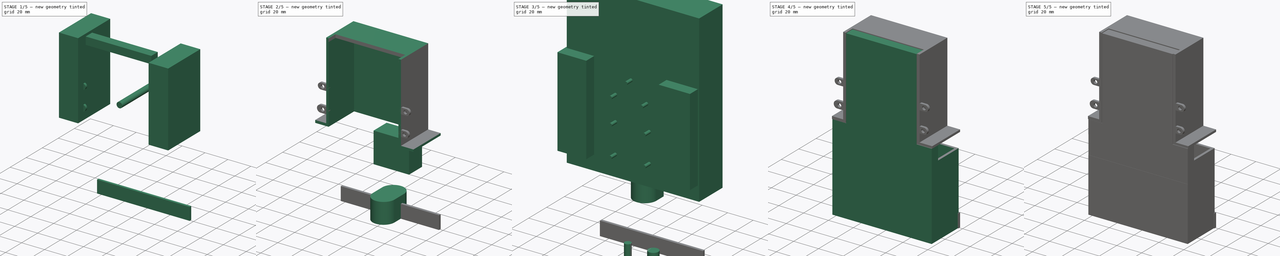
[diagram: build sequence overview — one tinted view per stage of 5, left to right]
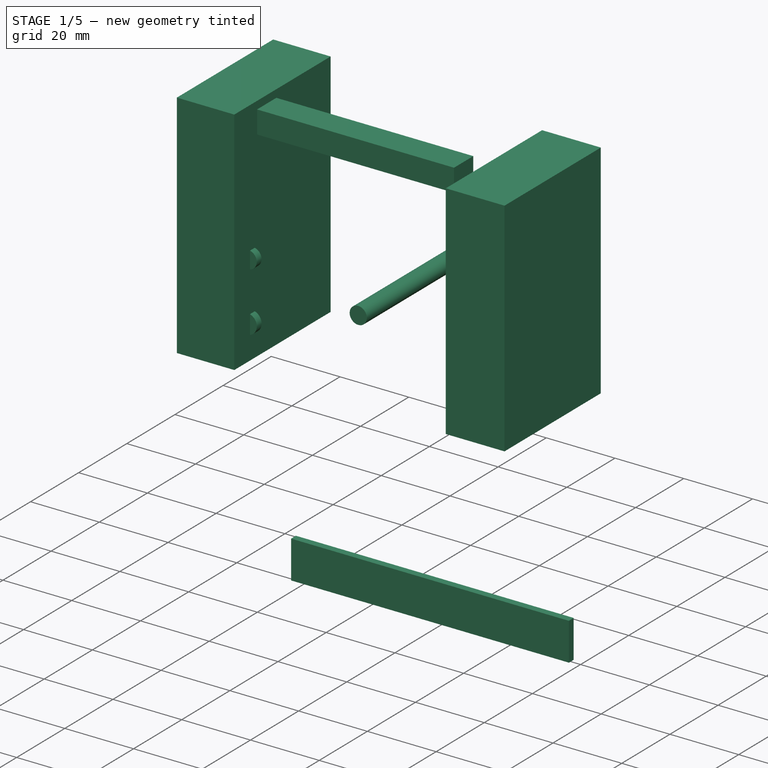
[diagram: stage 1 of 5 — iso view after this stage's code; geometry added in this stage tinted green]
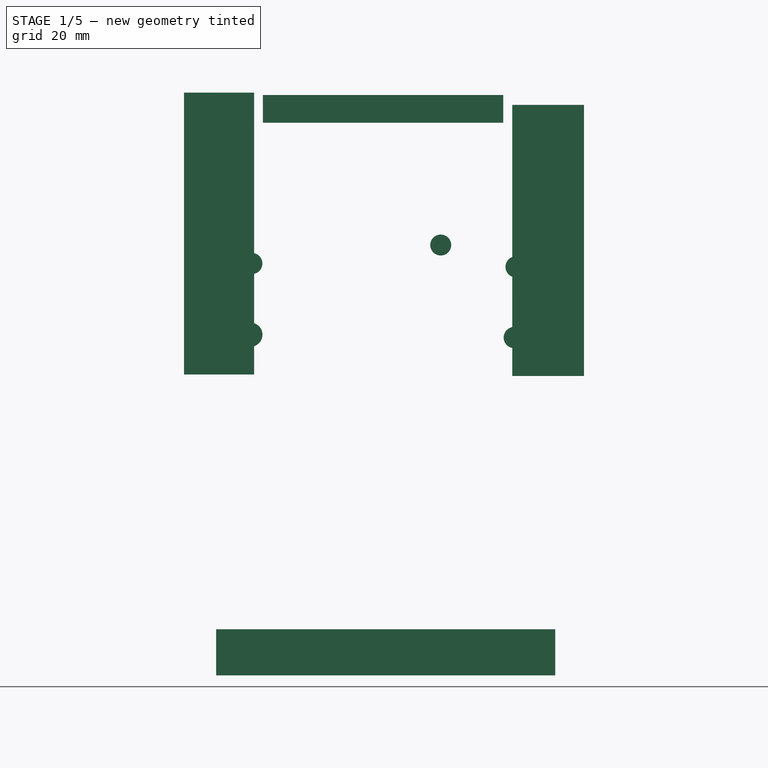
[diagram: stage 1 of 5 — front view after this stage's code; geometry added in this stage tinted green]
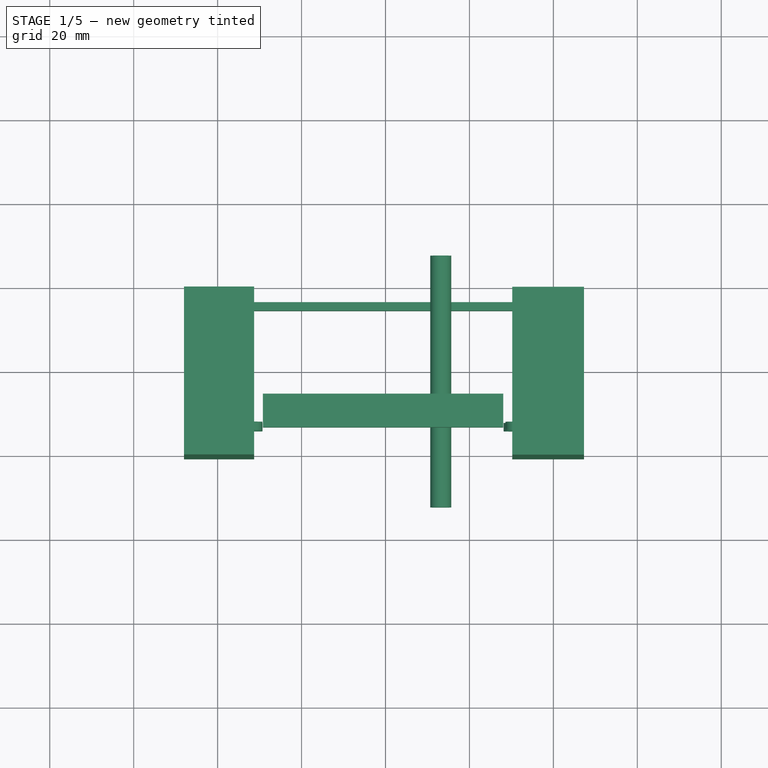
[diagram: stage 1 of 5 — top view after this stage's code; geometry added in this stage tinted green]
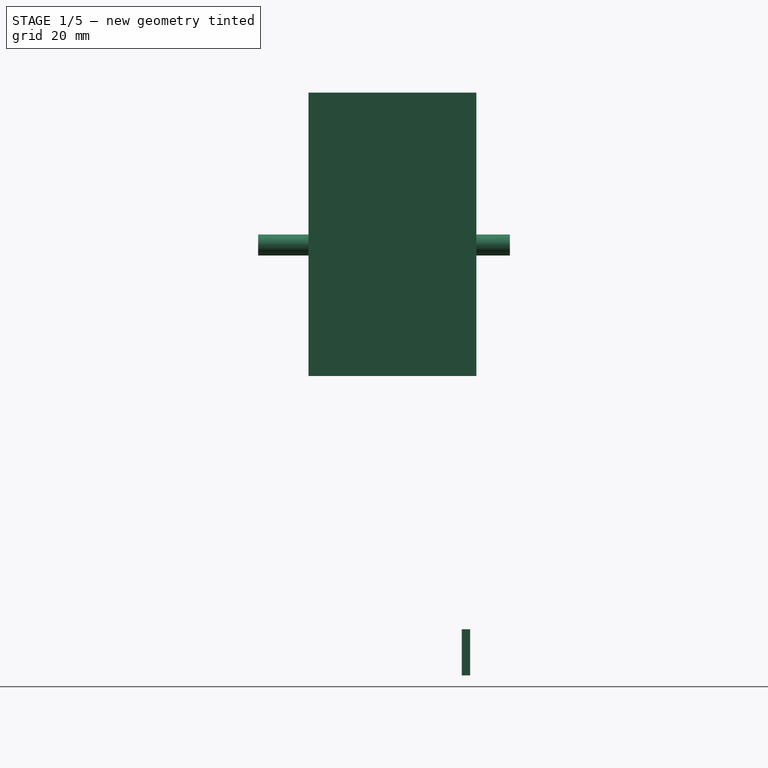
[diagram: stage 1 of 5 — right view after this stage's code; geometry added in this stage tinted green]
FCSTD DOCUMENT  (FreeCAD 0.18.4R)
Label: 2_box_swLight
License: All rights reserved
LicenseURL: http://en.wikipedia.org/wiki/All_rights_reserved
objects: Sketcher::SketchObject×21, Part::Extrusion×20, Part::Cut×14, Part::MultiFuse×2, PartDesign::Pad×1, PartDesign::Body×1
note: 60 computed .brp shape members not serialized (recipe doc carries the construction recipe); baked Part::Feature solids carry a one-line shape summary decoded from their .brp

FEATURE [Part::Extrusion] Extrude015  label="Extrude016"
  Base = -> Sketch016
  Dir = (0,-1,0)
  DirMode = 2
  FaceMakerClass = Part::FaceMakerBullseye
  LengthFwd = 40
  LengthRev = 0
  Placement = pos=(0,18,0) rot=(0,0,1;0rad)
  Solid = true
  Symmetric = false
FEATURE [Sketcher::SketchObject] Sketch017  label="Sketch018"
  Placement = pos=(-1,0,33) rot=(-1,0,0;4.71239rad)
  sketch-geometry (1):
    g0: Circle CenterX=14.1524 CenterY=69.5358 CenterZ=0 NormalX=0 NormalY=0 NormalZ=1 AngleXU=0 Radius=2.5
  constraints (1):
    c: Radius(g0) = 2.5
FEATURE [Part::Extrusion] Extrude016  label="Extrude017"
  Base = -> Sketch017
  Dir = (0,-1,-2e-16)
  DirMode = 2
  FaceMakerClass = Part::FaceMakerBullseye
  LengthFwd = 60
  LengthRev = 0
  Placement = pos=(0,26,0) rot=(0,0,1;0rad)
  Solid = true
  Symmetric = false
FEATURE [Sketcher::SketchObject] Sketch018  label="Sketch019"
  Placement = pos=(0,0.01,0) rot=(-1,0,0;4.71239rad)
  sketch-geometry (4):
    g0: LineSegment StartX=-29.2366 StartY=137.275 StartZ=0 EndX=28.0518 EndY=137.275 EndZ=0
    g1: LineSegment StartX=28.0518 StartY=137.275 StartZ=0 EndX=28.0518 EndY=130.688 EndZ=0
    g2: LineSegment StartX=28.0518 StartY=130.688 StartZ=0 EndX=-29.2366 EndY=130.688 EndZ=0
    g3: LineSegment StartX=-29.2366 StartY=130.688 StartZ=0 EndX=-29.2366 EndY=137.275 EndZ=0
  constraints (8):
    c: Coincident(g0,g1)
    c: Coincident(g1,g2)
    c: Coincident(g2,g3)
    c: Coincident(g3,g0)
    c: Horizontal(g0)
    c: Horizontal(g2)
    c: Vertical(g1)
    c: Vertical(g3)
FEATURE [Part::Extrusion] Extrude017  label="Extrude018"
  Base = -> Sketch018
  Dir = (0,-1,0)
  DirMode = 2
  FaceMakerClass = Part::FaceMakerBullseye
  LengthFwd = 8
  LengthRev = 0
  Placement = pos=(0,-7.5,1) rot=(0,0,1;0rad)
  Solid = true
  Symmetric = false
FEATURE [Sketcher::SketchObject] Sketch019  label="Sketch020"
  Placement = pos=(0,0.01,0) rot=(-1,0,0;4.71239rad)
  sketch-geometry (16):
    g0: ArcOfCircle CenterX=30.6738 CenterY=80.4963 CenterZ=0 NormalX=0 NormalY=0 NormalZ=1 AngleXU=0 Radius=2.52821 StartAngle=1.5708 EndAngle=4.71239
    g1: ArcOfCircle CenterX=33.7537 CenterY=80.4963 CenterZ=0 NormalX=0 NormalY=0 NormalZ=1 AngleXU=0 Radius=2.52821 StartAngle=4.71239 EndAngle=7.85398
    g2: LineSegment StartX=30.6738 StartY=77.9681 StartZ=0 EndX=33.7537 EndY=77.9681 EndZ=0
    g3: LineSegment StartX=30.6738 StartY=83.0245 StartZ=0 EndX=33.7537 EndY=83.0245 EndZ=0
    g4: ArcOfCircle CenterX=31.0881 CenterY=97.3311 CenterZ=0 NormalX=0 NormalY=0 NormalZ=1 AngleXU=0 Radius=2.51255 StartAngle=1.5708 EndAngle=4.71239
    g5: ArcOfCircle CenterX=34.6754 CenterY=97.3311 CenterZ=0 NormalX=0 NormalY=0 NormalZ=1 AngleXU=0 Radius=2.51255 StartAngle=4.71239 EndAngle=7.85398
    g6: LineSegment StartX=31.0881 StartY=94.8186 StartZ=0 EndX=34.6754 EndY=94.8186 EndZ=0
    g7: LineSegment StartX=31.0881 StartY=99.8437 StartZ=0 EndX=34.6754 EndY=99.8437 EndZ=0
    g8: ArcOfCircle CenterX=-35.6455 CenterY=98.1309 CenterZ=0 NormalX=0 NormalY=0 NormalZ=1 AngleXU=0 Radius=2.52673 StartAngle=1.5708 EndAngle=4.71239
    g9: ArcOfCircle CenterX=-31.8608 CenterY=98.1309 CenterZ=0 NormalX=0 NormalY=0 NormalZ=1 AngleXU=0 Radius=2.52673 StartAngle=4.71239 EndAngle=7.85398
    g10: LineSegment StartX=-35.6455 StartY=95.6042 StartZ=0 EndX=-31.8608 EndY=95.6042 EndZ=0
    g11: LineSegment StartX=-35.6455 StartY=100.658 StartZ=0 EndX=-31.8608 EndY=100.658 EndZ=0
    g12: ArcOfCircle CenterX=-36.0324 CenterY=81.1781 CenterZ=0 NormalX=0 NormalY=0 NormalZ=1 AngleXU=0 Radius=2.86834 StartAngle=1.5708 EndAngle=4.71239
    g13: ArcOfCircle CenterX=-32.1846 CenterY=81.1781 CenterZ=0 NormalX=0 NormalY=0 NormalZ=1 AngleXU=0 Radius=2.86834 StartAngle=4.71239 EndAngle=7.85398
    g14: LineSegment StartX=-36.0324 StartY=78.3098 StartZ=0 EndX=-32.1846 EndY=78.3098 EndZ=0
    g15: LineSegment StartX=-36.0324 StartY=84.0465 StartZ=0 EndX=-32.1846 EndY=84.0465 EndZ=0
  constraints (24):
    c: Tangent(g0,g3) = 1.5708
    c: Tangent(g0,g2) = -1.5708
    c: Tangent(g2,g1) = -1.5708
    c: Tangent(g3,g1) = 1.5708
    c: Horizontal(g2)
    c: Equal(g0,g1)
    c: Tangent(g4,g7) = 1.5708
    c: Tangent(g4,g6) = -1.5708
    c: Tangent(g6,g5) = -1.5708
    c: Tangent(g7,g5) = 1.5708
    c: Horizontal(g6)
    c: Equal(g4,g5)
    c: Tangent(g8,g11) = 1.5708
    c: Tangent(g8,g10) = -1.5708
    c: Tangent(g10,g9) = -1.5708
    c: Tangent(g11,g9) = 1.5708
    c: Horizontal(g10)
    c: Equal(g8,g9)
    c: Tangent(g12,g15) = 1.5708
    c: Tangent(g12,g14) = -1.5708
    c: Tangent(g14,g13) = -1.5708
    c: Tangent(g15,g13) = 1.5708
    c: Horizontal(g14)
    c: Equal(g12,g13)
FEATURE [Sketcher::SketchObject] Sketch020  label="Sketch021"
  Placement = pos=(0,-13,0) rot=(-1,0,0;4.71239rad)
  sketch-geometry (4):
    g0: Circle CenterX=-34.3565 CenterY=98.1119 CenterZ=0 NormalX=0 NormalY=0 NormalZ=1 AngleXU=0 Radius=1.5
    g1: Circle CenterX=33.7677 CenterY=97.2278 CenterZ=0 NormalX=0 NormalY=0 NormalZ=1 AngleXU=0 Radius=1.5
    g2: Circle CenterX=-34.3622 CenterY=81.0082 CenterZ=0 NormalX=0 NormalY=0 NormalZ=1 AngleXU=0 Radius=1.5
    g3: Circle CenterX=32.9978 CenterY=80.4267 CenterZ=0 NormalX=0 NormalY=0 NormalZ=1 AngleXU=0 Radius=1.5
  constraints (3):
    c: Radius(g0) = 1.5
    c: Equal(g0,g1) = 1.5
    c: Equal(g0,g2) = 1.5
FEATURE [Part::Extrusion] Extrude018  label="Extrude019"
  Base = -> Sketch019
  Dir = (0,-1,0)
  DirMode = 2
  FaceMakerClass = Part::FaceMakerBullseye
  LengthFwd = 2
  LengthRev = 0
  Placement = pos=(0,-13.5,0) rot=(0,0,1;0rad)
  Solid = true
  Symmetric = false
FEATURE [Part::Extrusion] Extrude019  label="Extrude020"
  Base = -> Sketch020
  Dir = (0,-1,-2e-16)
  DirMode = 2
  FaceMakerClass = Part::FaceMakerBullseye
  LengthFwd = 10
  LengthRev = 0
  Solid = true
  Symmetric = false
FEATURE [Part::Cut] Cut013
  Base = -> Extrude018
  Tool = -> Extrude019
FEATURE [Sketcher::SketchObject] Sketch021  label="Sketch022"
  MapMode = 5
  Support = -> [XY_Plane001]
  sketch-geometry (4):
    g0: LineSegment StartX=-40.3661 StartY=14.5349 StartZ=0 EndX=40.4396 EndY=14.5349 EndZ=0
    g1: LineSegment StartX=40.4396 StartY=14.5349 StartZ=0 EndX=40.4396 EndY=16.5199 EndZ=0
    g2: LineSegment StartX=40.4396 StartY=16.5199 StartZ=0 EndX=-40.3661 EndY=16.5199 EndZ=0
    g3: LineSegment StartX=-40.3661 StartY=16.5199 StartZ=0 EndX=-40.3661 EndY=14.5349 EndZ=0
  constraints (8):
    c: Coincident(g0,g1)
    c: Coincident(g1,g2)
    c: Coincident(g2,g3)
    c: Coincident(g3,g0)
    c: Horizontal(g0)
    c: Horizontal(g2)
    c: Vertical(g1)
    c: Vertical(g3)
FEATURE [PartDesign::Pad] Pad
  Length = 11
  Length2 = 100
  Profile = -> Sketch021
  Type = 0
FEATURE [PartDesign::Body] Body001
  Group = -> [Sketch021,Pad]
  Origin = -> Origin001
  Placement = pos=(0,0,58.7) rot=(0,0,1;0rad)
  Tip = -> Pad
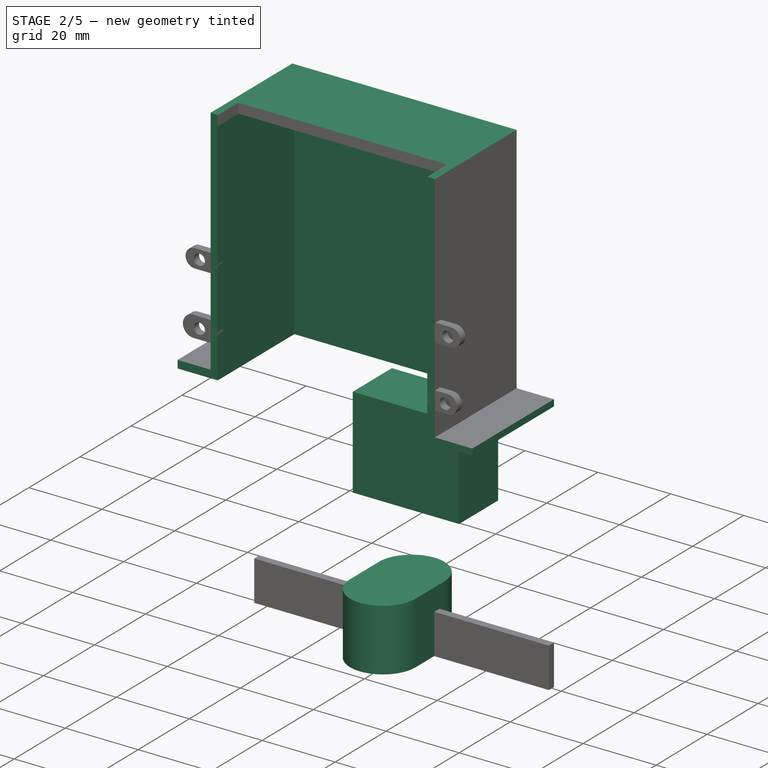
[diagram: stage 2 of 5 — iso view after this stage's code; geometry added in this stage tinted green]
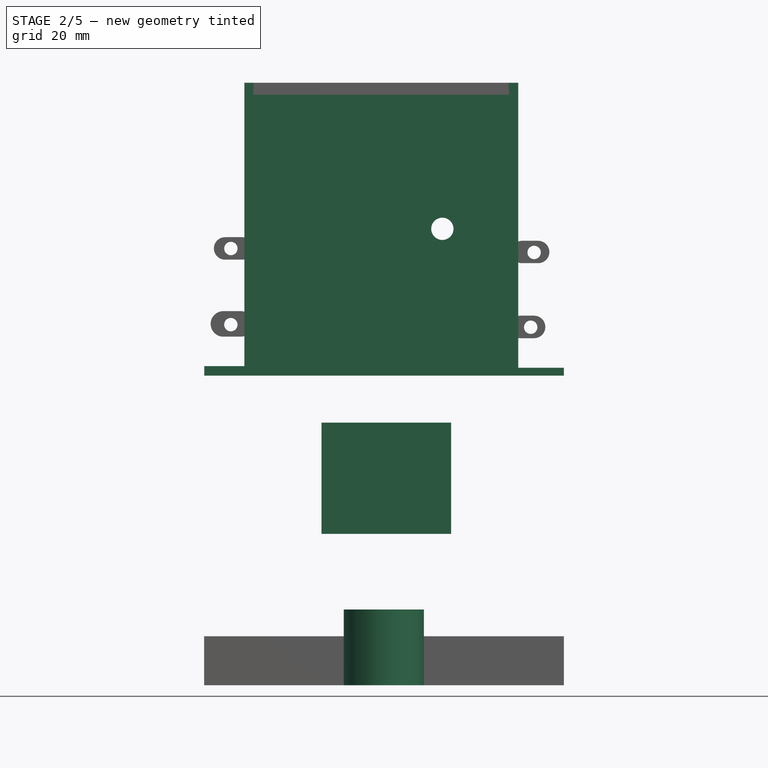
[diagram: stage 2 of 5 — front view after this stage's code; geometry added in this stage tinted green]
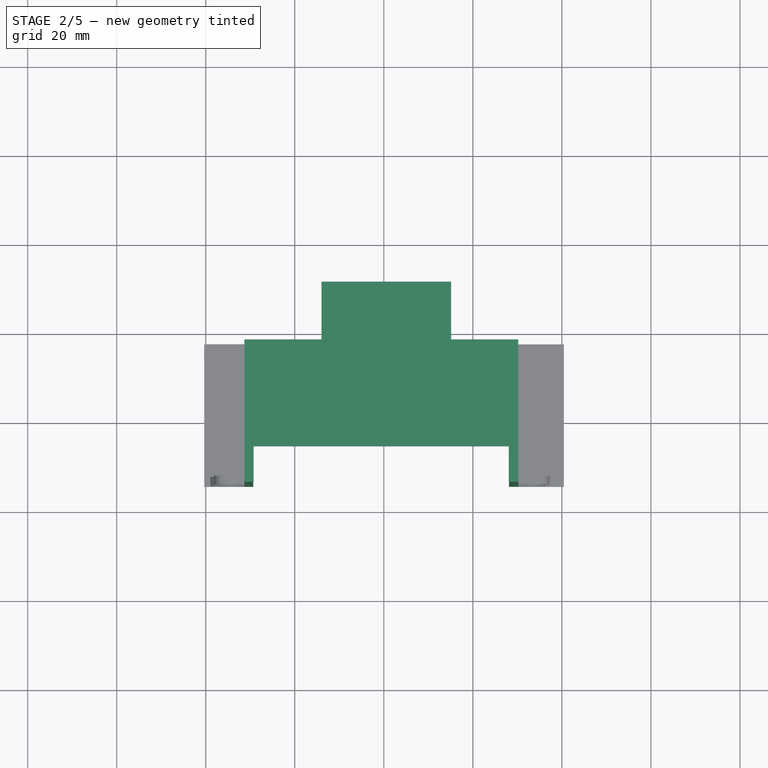
[diagram: stage 2 of 5 — top view after this stage's code; geometry added in this stage tinted green]
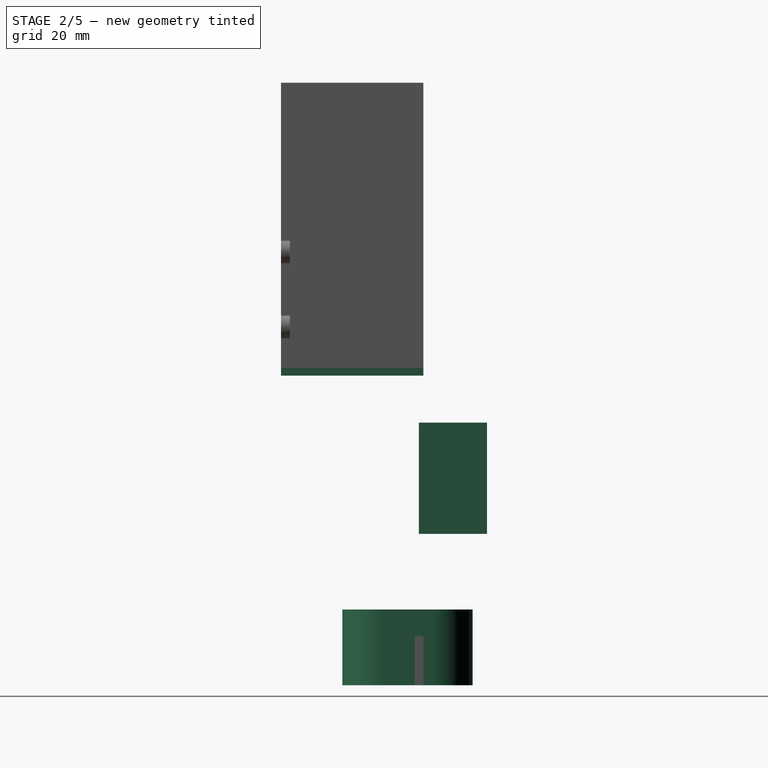
[diagram: stage 2 of 5 — right view after this stage's code; geometry added in this stage tinted green]
FEATURE [Part::Extrusion] Extrude011  label="Extrude012"
  Base = -> Sketch012
  Dir = (0,0,1)
  DirMode = 2
  FaceMakerClass = Part::FaceMakerBullseye
  LengthFwd = 17
  LengthRev = 0
  Solid = true
  Symmetric = false
FEATURE [Sketcher::SketchObject] Sketch013  label="Sketch014"
  Placement = pos=(0,0,0.01) rot=(0,0,1;0rad)
  sketch-geometry (4):
    g0: LineSegment StartX=-14.0068 StartY=30.8063 StartZ=0 EndX=15.1256 EndY=30.8063 EndZ=0
    g1: LineSegment StartX=15.1256 StartY=30.8063 StartZ=0 EndX=15.1256 EndY=15.5061 EndZ=0
    g2: LineSegment StartX=15.1256 StartY=15.5061 StartZ=0 EndX=-14.0068 EndY=15.5061 EndZ=0
    g3: LineSegment StartX=-14.0068 StartY=15.5061 StartZ=0 EndX=-14.0068 EndY=30.8063 EndZ=0
  constraints (8):
    c: Coincident(g0,g1)
    c: Coincident(g1,g2)
    c: Coincident(g2,g3)
    c: Coincident(g3,g0)
    c: Horizontal(g0)
    c: Horizontal(g2)
    c: Vertical(g1)
    c: Vertical(g3)
FEATURE [Part::Extrusion] Extrude012  label="Extrude013"
  Base = -> Sketch013
  Dir = (0,0,1)
  DirMode = 2
  FaceMakerClass = Part::FaceMakerBullseye
  LengthFwd = 25
  LengthRev = 0
  Placement = pos=(0,0,34) rot=(0,0,1;0rad)
  Solid = true
  Symmetric = false
FEATURE [Sketcher::SketchObject] Sketch014  label="Sketch015"
  Placement = pos=(0,0.01,0) rot=(-1,0,0;4.71239rad)
  sketch-geometry (4):
    g0: LineSegment StartX=-40.3438 StartY=135.355 StartZ=0 EndX=40.4503 EndY=135.355 EndZ=0
    g1: LineSegment StartX=40.4503 StartY=135.355 StartZ=0 EndX=40.4503 EndY=69.5602 EndZ=0
    g2: LineSegment StartX=40.4503 StartY=69.5602 StartZ=0 EndX=-40.3438 EndY=69.5602 EndZ=0
    g3: LineSegment StartX=-40.3438 StartY=69.5602 StartZ=0 EndX=-40.3438 EndY=135.355 EndZ=0
  constraints (8):
    c: Coincident(g0,g1)
    c: Coincident(g1,g2)
    c: Coincident(g2,g3)
    c: Coincident(g3,g0)
    c: Horizontal(g0)
    c: Horizontal(g2)
    c: Vertical(g1)
    c: Vertical(g3)
FEATURE [Sketcher::SketchObject] Sketch015  label="Sketch016"
  Placement = pos=(0,0.01,0) rot=(-1,0,0;4.71239rad)
  sketch-geometry (4):
    g0: LineSegment StartX=-29.3396 StartY=132.645 StartZ=0 EndX=28.1152 EndY=132.645 EndZ=0
    g1: LineSegment StartX=28.1152 StartY=132.645 StartZ=0 EndX=28.1152 EndY=68.9556 EndZ=0
    g2: LineSegment StartX=28.1152 StartY=68.9556 StartZ=0 EndX=-29.3396 EndY=68.9556 EndZ=0
    g3: LineSegment StartX=-29.3396 StartY=68.9556 StartZ=0 EndX=-29.3396 EndY=132.645 EndZ=0
  constraints (8):
    c: Coincident(g0,g1)
    c: Coincident(g1,g2)
    c: Coincident(g2,g3)
    c: Coincident(g3,g0)
    c: Horizontal(g0)
    c: Horizontal(g2)
    c: Vertical(g1)
    c: Vertical(g3)
FEATURE [Sketcher::SketchObject] Sketch016  label="Sketch017"
  Placement = pos=(0,0.01,0) rot=(-1,0,0;4.71239rad)
  sketch-geometry (8):
    g0: LineSegment StartX=30.2092 StartY=135.924 StartZ=0 EndX=47.2882 EndY=135.924 EndZ=0
    g1: LineSegment StartX=47.2882 StartY=135.924 StartZ=0 EndX=47.2882 EndY=71.3262 EndZ=0
    g2: LineSegment StartX=47.2882 StartY=71.3262 StartZ=0 EndX=30.2092 EndY=71.3262 EndZ=0
    g3: LineSegment StartX=30.2092 StartY=71.3262 StartZ=0 EndX=30.2092 EndY=135.924 EndZ=0
    g4: LineSegment StartX=-48.0143 StartY=138.85 StartZ=0 EndX=-31.31 EndY=138.85 EndZ=0
    g5: LineSegment StartX=-31.31 StartY=138.85 StartZ=0 EndX=-31.31 EndY=71.6925 EndZ=0
    g6: LineSegment StartX=-31.31 StartY=71.6925 StartZ=0 EndX=-48.0143 EndY=71.6925 EndZ=0
    g7: LineSegment StartX=-48.0143 StartY=71.6925 StartZ=0 EndX=-48.0143 EndY=138.85 EndZ=0
  constraints (16):
    c: Coincident(g0,g1)
    c: Coincident(g1,g2)
    c: Coincident(g2,g3)
    c: Coincident(g3,g0)
    c: Horizontal(g0)
    c: Horizontal(g2)
    c: Vertical(g1)
    c: Vertical(g3)
    c: Coincident(g4,g5)
    c: Coincident(g5,g6)
    c: Coincident(g6,g7)
    c: Coincident(g7,g4)
    c: Horizontal(g4)
    c: Horizontal(g6)
    c: Vertical(g5)
    c: Vertical(g7)
FEATURE [Part::Extrusion] Extrude013  label="Extrude014"
  Base = -> Sketch014
  Dir = (0,-1,0)
  DirMode = 2
  FaceMakerClass = Part::FaceMakerBullseye
  LengthFwd = 32
  LengthRev = 0
  Placement = pos=(0,16.5,0) rot=(0,0,1;0rad)
  Solid = true
  Symmetric = false
FEATURE [Part::Extrusion] Extrude014  label="Extrude015"
  Base = -> Sketch015
  Dir = (0,-1,0)
  DirMode = 2
  FaceMakerClass = Part::FaceMakerBullseye
  LengthFwd = 30
  LengthRev = 0
  Placement = pos=(0,14.5,0) rot=(0,0,1;0rad)
  Solid = true
  Symmetric = false
FEATURE [Part::Cut] Cut009
  Base = -> Extrude013
  Tool = -> Extrude014
FEATURE [Part::Cut] Cut010
  Base = -> Cut009
  Tool = -> Extrude015
FEATURE [Part::Cut] Cut011
  Base = -> Cut010
  Tool = -> Extrude016
FEATURE [Part::Cut] Cut012
  Base = -> Cut011
  Tool = -> Extrude017
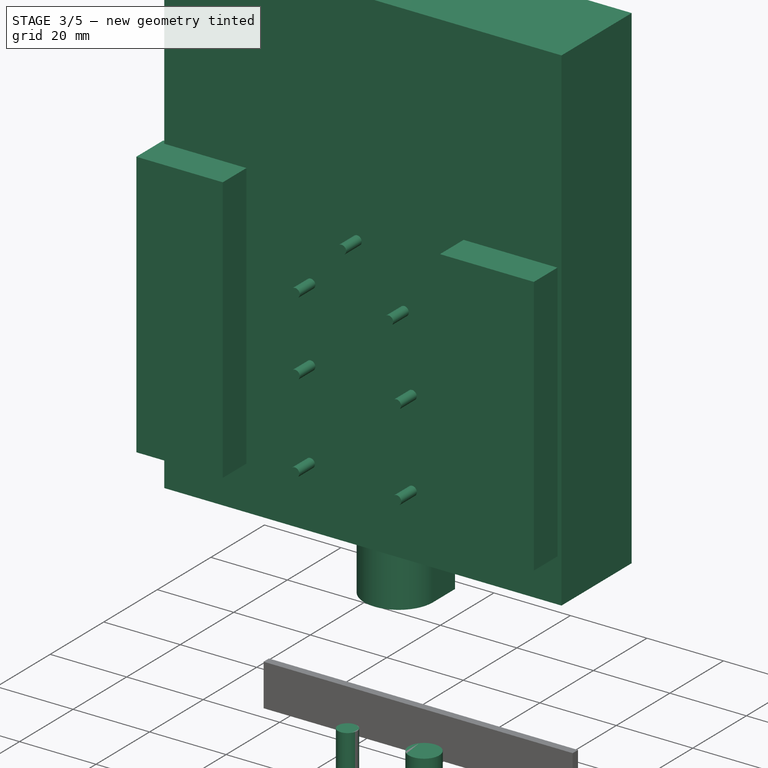
[diagram: stage 3 of 5 — iso view after this stage's code; geometry added in this stage tinted green]
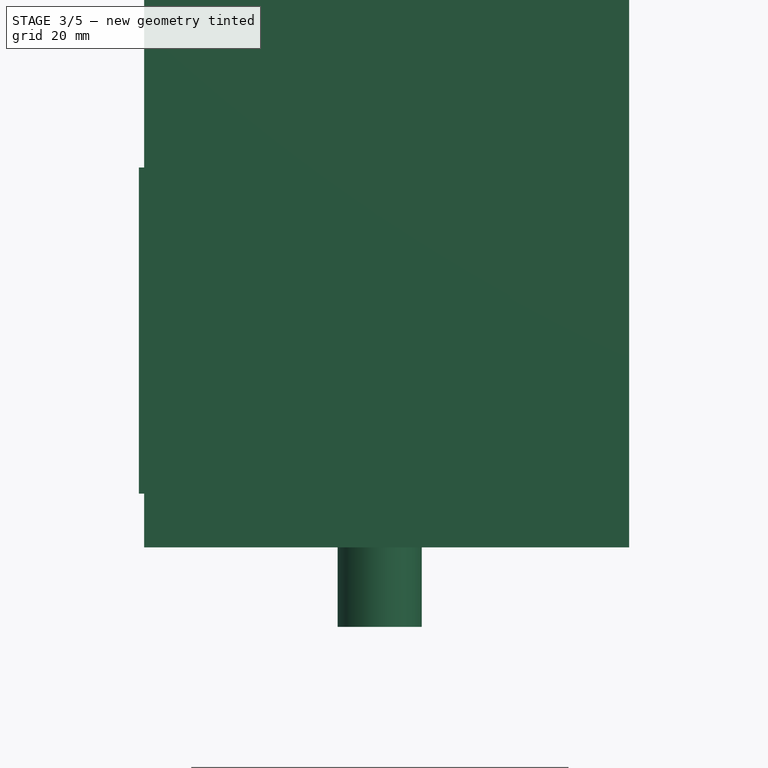
[diagram: stage 3 of 5 — front view after this stage's code; geometry added in this stage tinted green]
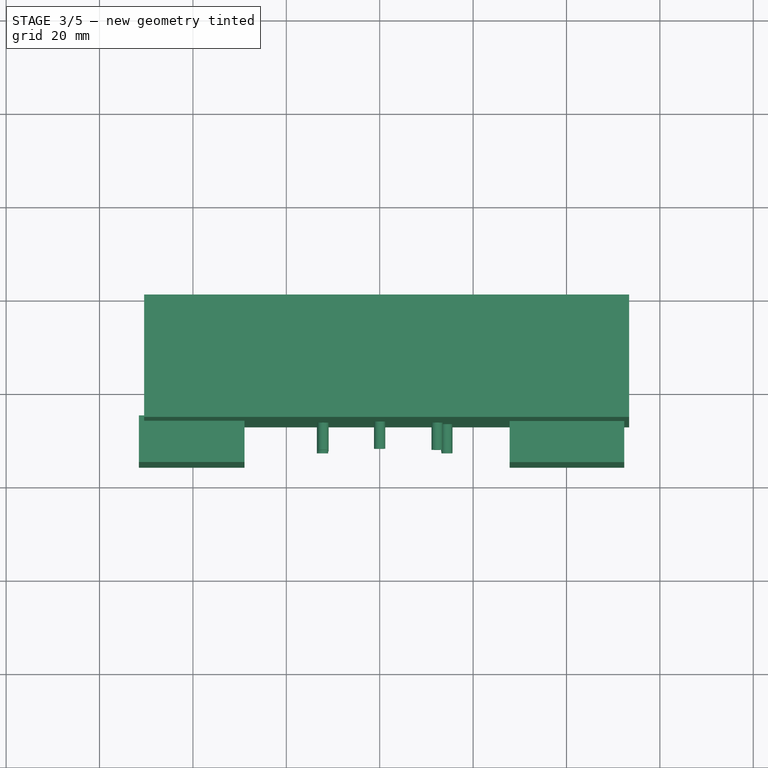
[diagram: stage 3 of 5 — top view after this stage's code; geometry added in this stage tinted green]
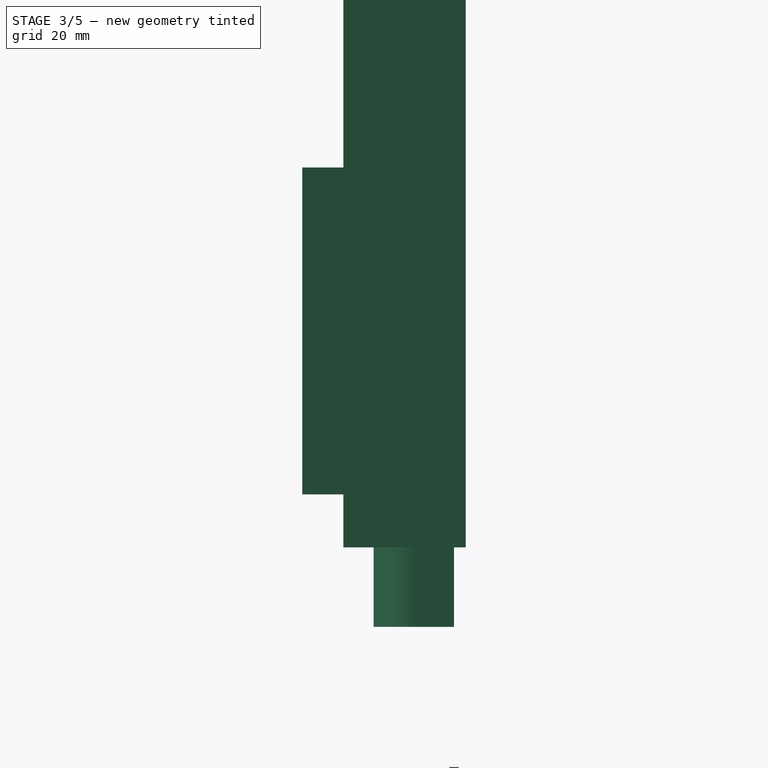
[diagram: stage 3 of 5 — right view after this stage's code; geometry added in this stage tinted green]
FEATURE [Part::Extrusion] Extrude002  label="Extrude003"
  Base = -> Sketch003
  Dir = (0,0,1)
  DirMode = 2
  FaceMakerClass = Part::FaceMakerBullseye
  LengthFwd = 130
  LengthRev = 0
  Placement = pos=(0,0,58) rot=(0,0,1;0rad)
  Solid = true
  Symmetric = false
FEATURE [Part::Extrusion] Extrude004  label="Extrude005"
  Base = -> Sketch004
  Dir = (0,0,1)
  DirMode = 2
  FaceMakerClass = Part::FaceMakerBullseye
  LengthFwd = 10
  LengthRev = 0
  Placement = pos=(0,0,-2) rot=(0,0,1;0rad)
  Solid = true
  Symmetric = false
FEATURE [Sketcher::SketchObject] Sketch008  label="Sketch009"
  Placement = pos=(0,0.01,0) rot=(1,0,0;1.5708rad)
  sketch-geometry (7):
    g0: Circle CenterX=-12.1415 CenterY=116.549 CenterZ=0 NormalX=0 NormalY=0 NormalZ=1 AngleXU=0 Radius=1.2
    g1: Circle CenterX=12.2936 CenterY=116.598 CenterZ=0 NormalX=0 NormalY=0 NormalZ=1 AngleXU=0 Radius=1.2
    g2: Circle CenterX=-12.1415 CenterY=97.217 CenterZ=0 NormalX=0 NormalY=0 NormalZ=1 AngleXU=0 Radius=1.2
    g3: Circle CenterX=14.3543 CenterY=97.3151 CenterZ=0 NormalX=0 NormalY=0 NormalZ=1 AngleXU=0 Radius=1.2
    g4: Circle CenterX=-12.2495 CenterY=74.1402 CenterZ=0 NormalX=0 NormalY=0 NormalZ=1 AngleXU=0 Radius=1.2
    g5: Circle CenterX=14.3951 CenterY=74.6861 CenterZ=0 NormalX=0 NormalY=0 NormalZ=1 AngleXU=0 Radius=1.2
    g6: Circle CenterX=-0.012036 CenterY=130.015 CenterZ=0 NormalX=0 NormalY=0 NormalZ=1 AngleXU=0 Radius=1.2
  constraints (4):
    c: Radius(g0) = 1.2
    c: Equal(g0,g1) = 1.2
    c: Equal(g0,g2) = 1.2
    c: Equal(g0,g6) = 1.2
FEATURE [Part::Extrusion] Extrude007  label="Extrude008"
  Base = -> Sketch008
  Dir = (0,-1,0)
  DirMode = 2
  FaceMakerClass = Part::FaceMakerBullseye
  LengthFwd = 10
  LengthRev = 0
  Placement = pos=(0,-4,0) rot=(0,0,1;0rad)
  Solid = true
  Symmetric = false
FEATURE [Sketcher::SketchObject] Sketch009  label="Sketch010"
  Placement = pos=(0,0.01,0) rot=(1,0,0;1.5708rad)
  sketch-geometry (8):
    g0: LineSegment StartX=27.8206 StartY=137.585 StartZ=0 EndX=52.3583 EndY=137.585 EndZ=0
    g1: LineSegment StartX=52.3583 StartY=137.585 StartZ=0 EndX=52.3583 EndY=69.3686 EndZ=0
    g2: LineSegment StartX=52.3583 StartY=69.3686 StartZ=0 EndX=27.8206 EndY=69.3686 EndZ=0
    g3: LineSegment StartX=27.8206 StartY=69.3686 StartZ=0 EndX=27.8206 EndY=137.585 EndZ=0
    g4: LineSegment StartX=-51.5611 StartY=139.369 StartZ=0 EndX=-28.9596 EndY=139.369 EndZ=0
    g5: LineSegment StartX=-28.9596 StartY=139.369 StartZ=0 EndX=-28.9596 EndY=69.5368 EndZ=0
    g6: LineSegment StartX=-28.9596 StartY=69.5368 StartZ=0 EndX=-51.5611 EndY=69.5368 EndZ=0
    g7: LineSegment StartX=-51.5611 StartY=69.5368 StartZ=0 EndX=-51.5611 EndY=139.369 EndZ=0
  constraints (16):
    c: Coincident(g0,g1)
    c: Coincident(g1,g2)
    c: Coincident(g2,g3)
    c: Coincident(g3,g0)
    c: Horizontal(g0)
    c: Horizontal(g2)
    c: Vertical(g1)
    c: Vertical(g3)
    c: Coincident(g4,g5)
    c: Coincident(g5,g6)
    c: Coincident(g6,g7)
    c: Coincident(g7,g4)
    c: Horizontal(g4)
    c: Horizontal(g6)
    c: Vertical(g5)
    c: Vertical(g7)
FEATURE [Part::Extrusion] Extrude008  label="Extrude009"
  Base = -> Sketch009
  Dir = (0,-1,0)
  DirMode = 2
  FaceMakerClass = Part::FaceMakerBullseye
  LengthFwd = 10
  LengthRev = 0
  Placement = pos=(0,-7,0) rot=(0,0,1;0rad)
  Solid = true
  Symmetric = false
FEATURE [Part::Extrusion] Extrude010  label="Extrude011"
  Base = -> Sketch011
  Dir = (0,0,1)
  DirMode = 2
  FaceMakerClass = Part::FaceMakerBullseye
  LengthFwd = 23
  LengthRev = 0
  Placement = pos=(0,0,2) rot=(0,0,1;0rad)
  Solid = true
  Symmetric = false
FEATURE [Part::Cut] Cut007
  Base = -> Extrude011
  Placement = pos=(0,0,41) rot=(0,0,1;0rad)
  Tool = -> Extrude010
FEATURE [Part::Cut] Cut008
  Base = -> Cut007
  Tool = -> Extrude012
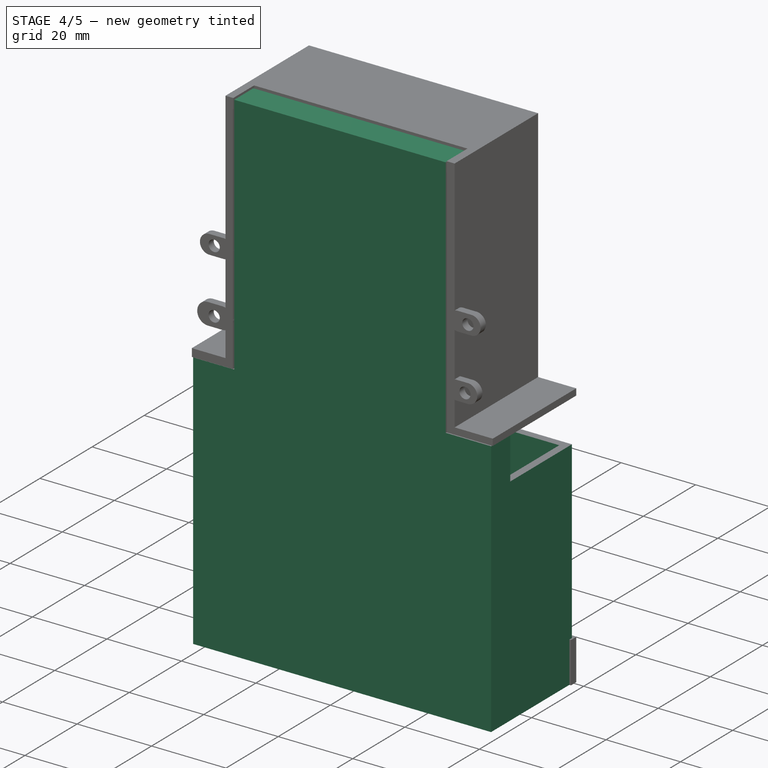
[diagram: stage 4 of 5 — iso view after this stage's code; geometry added in this stage tinted green]
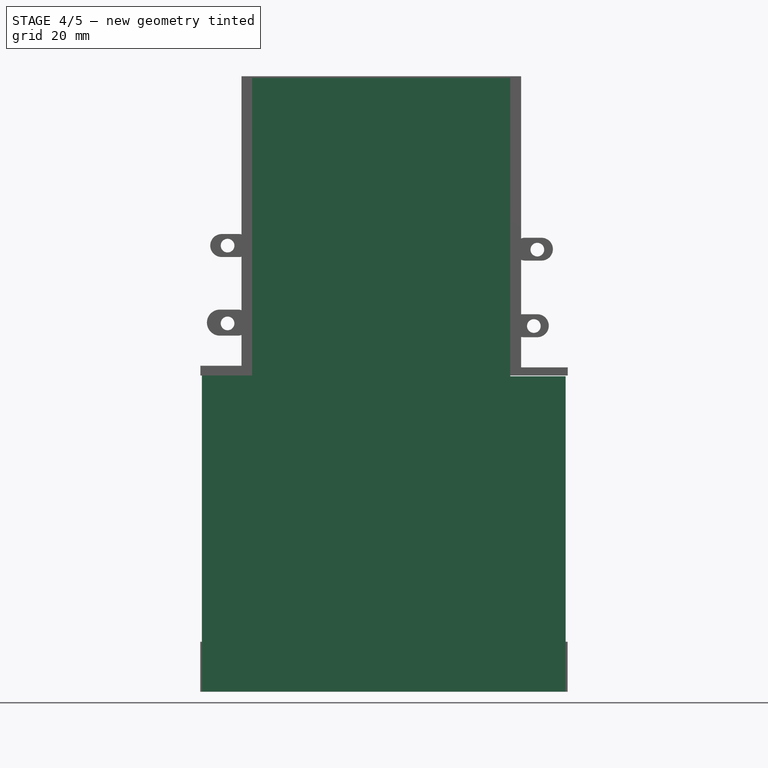
[diagram: stage 4 of 5 — front view after this stage's code; geometry added in this stage tinted green]
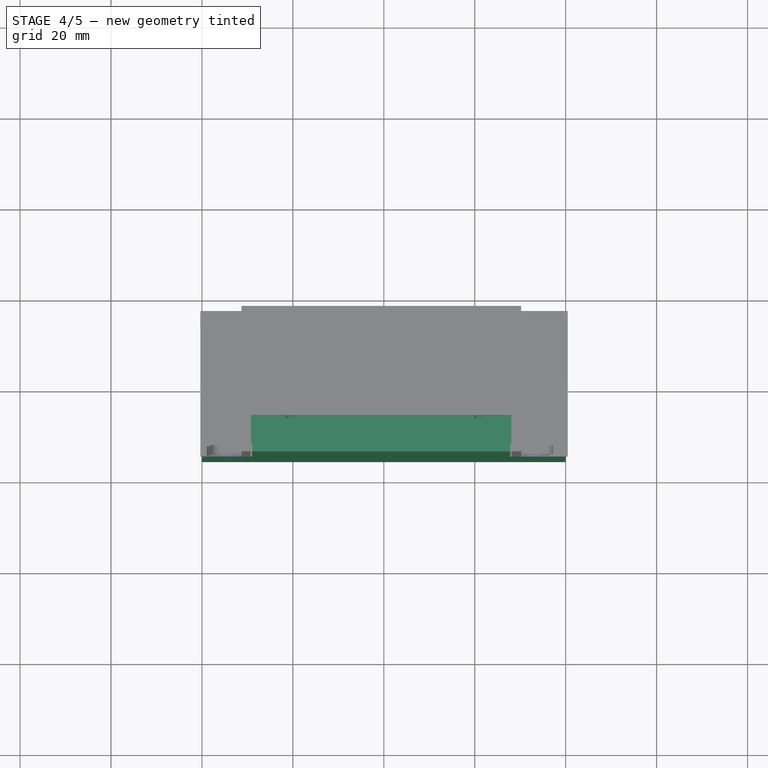
[diagram: stage 4 of 5 — top view after this stage's code; geometry added in this stage tinted green]
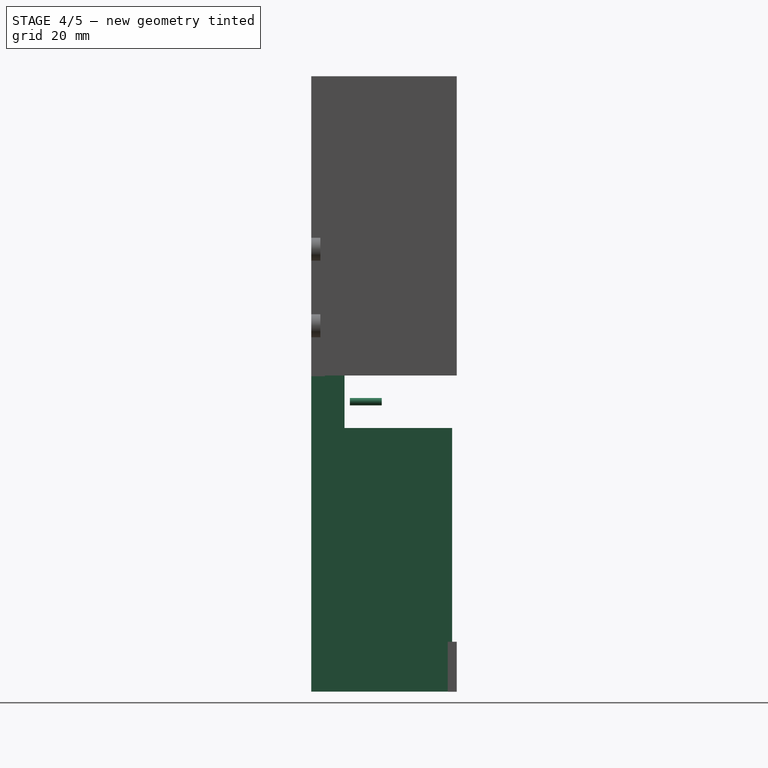
[diagram: stage 4 of 5 — right view after this stage's code; geometry added in this stage tinted green]
FEATURE [Sketcher::SketchObject] Sketch  label="Sketch001"
  Placement = pos=(0,0,0.01) rot=(0,0,1;0rad)
  sketch-geometry (4):
    g0: LineSegment StartX=-40 StartY=15.5 StartZ=0 EndX=40 EndY=15.5 EndZ=0
    g1: LineSegment StartX=40 StartY=15.5 StartZ=0 EndX=40 EndY=-15.5 EndZ=0
    g2: LineSegment StartX=40 StartY=-15.5 StartZ=0 EndX=-40 EndY=-15.5 EndZ=0
    g3: LineSegment StartX=-40 StartY=-15.5 StartZ=0 EndX=-40 EndY=15.5 EndZ=0
  constraints (12):
    c: Coincident(g0,g1)
    c: Coincident(g1,g2)
    c: Coincident(g2,g3)
    c: Coincident(g3,g0)
    c: Horizontal(g0)
    c: Horizontal(g2)
    c: Vertical(g1)
    c: Vertical(g3)
    c: DistanceX(g0,g0) = 80
    c: DistanceX(g0,g-1) = 40
    c: DistanceY(g3,g3) = 31
    c: DistanceY(g-1,g0) = 15.5
FEATURE [Sketcher::SketchObject] Sketch001  label="Sketch002"
  Placement = pos=(0,0,0.01) rot=(0,0,1;0rad)
  sketch-geometry (4):
    g0: LineSegment StartX=-38 StartY=13.5 StartZ=0 EndX=38 EndY=13.5 EndZ=0
    g1: LineSegment StartX=38 StartY=13.5 StartZ=0 EndX=38 EndY=-12.5 EndZ=0
    g2: LineSegment StartX=38 StartY=-12.5 StartZ=0 EndX=-38 EndY=-12.5 EndZ=0
    g3: LineSegment StartX=-38 StartY=-12.5 StartZ=0 EndX=-38 EndY=13.5 EndZ=0
  constraints (12):
    c: Coincident(g0,g1)
    c: Coincident(g1,g2)
    c: Coincident(g2,g3)
    c: Coincident(g3,g0)
    c: Horizontal(g0)
    c: Horizontal(g2)
    c: Vertical(g1)
    c: Vertical(g3)
    c: DistanceX(g0,g0) = 76
    c: DistanceX(g0,g-1) = 38
    c: DistanceY(g-1,g0) = 13.5
    c: DistanceY(g3,g3) = 26
FEATURE [Sketcher::SketchObject] Sketch002  label="Sketch003"
  Placement = pos=(0,0,0.01) rot=(0,0,1;0rad)
  sketch-geometry (8):
    g0: ArcOfCircle CenterX=0 CenterY=14 CenterZ=0 NormalX=0 NormalY=0 NormalZ=1 AngleXU=0 Radius=1.2 StartAngle=6e-16 EndAngle=3.14159
    g1: ArcOfCircle CenterX=1e-16 CenterY=1 CenterZ=0 NormalX=0 NormalY=0 NormalZ=1 AngleXU=0 Radius=1.2 StartAngle=3.14159 EndAngle=6.28319
    g2: LineSegment StartX=-1.2 StartY=14 StartZ=0 EndX=-1.2 EndY=1 EndZ=0
    g3: LineSegment StartX=1.2 StartY=14 StartZ=0 EndX=1.2 EndY=1 EndZ=0
    g4: ArcOfCircle CenterX=0 CenterY=-7.5 CenterZ=0 NormalX=0 NormalY=0 NormalZ=1 AngleXU=0 Radius=1.1 StartAngle=0 EndAngle=3.14159
    g5: ArcOfCircle CenterX=0 CenterY=-14 CenterZ=0 NormalX=0 NormalY=0 NormalZ=1 AngleXU=0 Radius=1.1 StartAngle=3.14159 EndAngle=6.28319
    g6: LineSegment StartX=-1.1 StartY=-7.5 StartZ=0 EndX=-1.1 EndY=-14 EndZ=0
    g7: LineSegment StartX=1.1 StartY=-7.5 StartZ=0 EndX=1.1 EndY=-14 EndZ=0
  constraints (20):
    c: Tangent(g0,g3) = 1.5708
    c: Tangent(g0,g2) = -1.5708
    c: Tangent(g2,g1) = -1.5708
    c: Tangent(g3,g1) = 1.5708
    c: Vertical(g2)
    c: Equal(g0,g1)
    c: Radius(g0) = 1.2
    c: DistanceX(g0,g-1) = 0
    c: DistanceY(g2,g2) = 13
    c: DistanceY(g-1,g1) = 1
    c: Tangent(g4,g7) = 1.5708
    c: Tangent(g4,g6) = -1.5708
    c: Tangent(g6,g5) = -1.5708
    c: Tangent(g7,g5) = 1.5708
    c: Vertical(g6)
    c: Equal(g4,g5)
    c: DistanceX(g4,g-1) = 0
    c: Radius(g4) = 1.1
    c: DistanceY(g4,g-1) = 7.5
    c: DistanceY(g6,g6) = 6.5
FEATURE [Sketcher::SketchObject] Sketch003  label="Sketch004"
  Placement = pos=(0,0,0.01) rot=(0,0,1;0rad)
  sketch-geometry (4):
    g0: LineSegment StartX=-50.4449 StartY=18.0436 StartZ=0 EndX=53.4034 EndY=18.0436 EndZ=0
    g1: LineSegment StartX=53.4034 StartY=18.0436 StartZ=0 EndX=53.4034 EndY=-8.16415 EndZ=0
    g2: LineSegment StartX=53.4034 StartY=-8.16415 StartZ=0 EndX=-50.4449 EndY=-8.16415 EndZ=0
    g3: LineSegment StartX=-50.4449 StartY=-8.16415 StartZ=0 EndX=-50.4449 EndY=18.0436 EndZ=0
  constraints (8):
    c: Coincident(g0,g1)
    c: Coincident(g1,g2)
    c: Coincident(g2,g3)
    c: Coincident(g3,g0)
    c: Horizontal(g0)
    c: Horizontal(g2)
    c: Vertical(g1)
    c: Vertical(g3)
FEATURE [Sketcher::SketchObject] Sketch004  label="Sketch005"
  Placement = pos=(0,0,0.01) rot=(0,0,1;0rad)
  sketch-geometry (2):
    g0: Circle CenterX=-10 CenterY=2.5 CenterZ=0 NormalX=0 NormalY=0 NormalZ=1 AngleXU=0 Radius=2.5
    g1: Circle CenterX=10 CenterY=2.5 CenterZ=0 NormalX=0 NormalY=0 NormalZ=1 AngleXU=0 Radius=4
  constraints (6):
    c: Radius(g1) = 4
    c: Radius(g0) = 2.5
    c: DistanceY(g-1,g0) = 2.5
    c: DistanceY(g-1,g1) = 2.5
    c: DistanceX(g0,g-1) = 10
    c: DistanceX(g-1,g1) = 10
FEATURE [Part::Extrusion] Extrude  label="Extrude002"
  Base = -> Sketch
  Dir = (0,0,1)
  DirMode = 2
  FaceMakerClass = Part::FaceMakerBullseye
  LengthFwd = 135
  LengthRev = 0
  Solid = true
  Symmetric = false
FEATURE [Part::Extrusion] Extrude001
  Base = -> Sketch001
  Dir = (0,0,1)
  DirMode = 2
  FaceMakerClass = Part::FaceMakerBullseye
  LengthFwd = 131
  LengthRev = 0
  Placement = pos=(0,0,3) rot=(0,0,1;0rad)
  Solid = true
  Symmetric = false
FEATURE [Part::Cut] Cut
  Base = -> Extrude
  Tool = -> Extrude001
FEATURE [Part::Cut] Cut001
  Base = -> Cut
  Tool = -> Extrude002
FEATURE [Part::Cut] Cut002
  Base = -> Cut001
  Tool = -> Extrude004
FEATURE [Part::Extrusion] Extrude006  label="Extrude007"
  Base = -> Sketch007
  Dir = (0,-1,0)
  DirMode = 2
  FaceMakerClass = Part::FaceMakerBullseye
  LengthFwd = 7
  LengthRev = 0
  Solid = true
  Symmetric = false
FEATURE [Part::Cut] Cut004
  Base = -> Cut002
  Tool = -> Extrude007
FEATURE [Part::Cut] Cut005
  Base = -> Cut004
  Tool = -> Extrude008
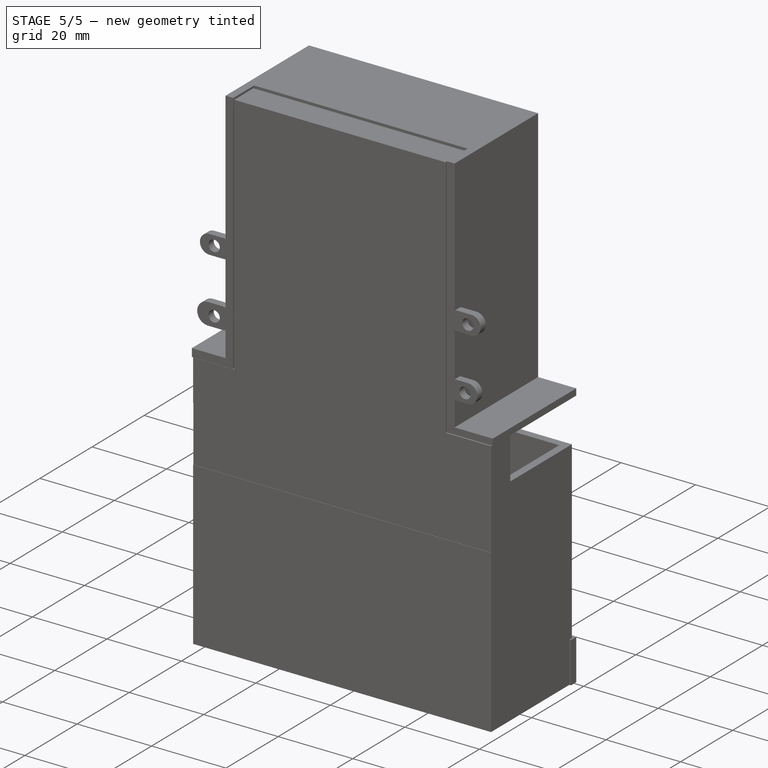
[diagram: stage 5 of 5 — iso view after this stage's code; geometry added in this stage tinted green]
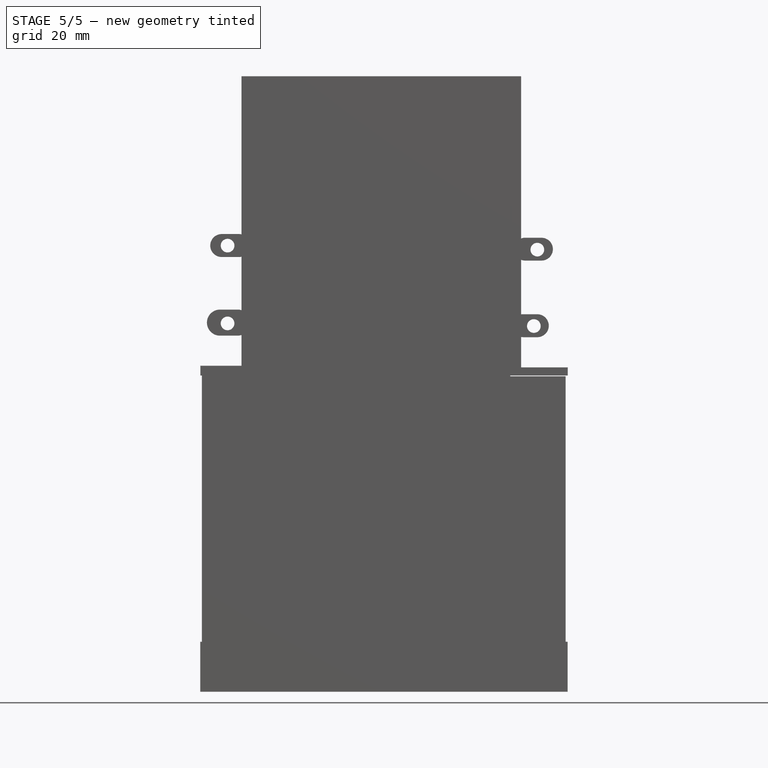
[diagram: stage 5 of 5 — front view after this stage's code; geometry added in this stage tinted green]
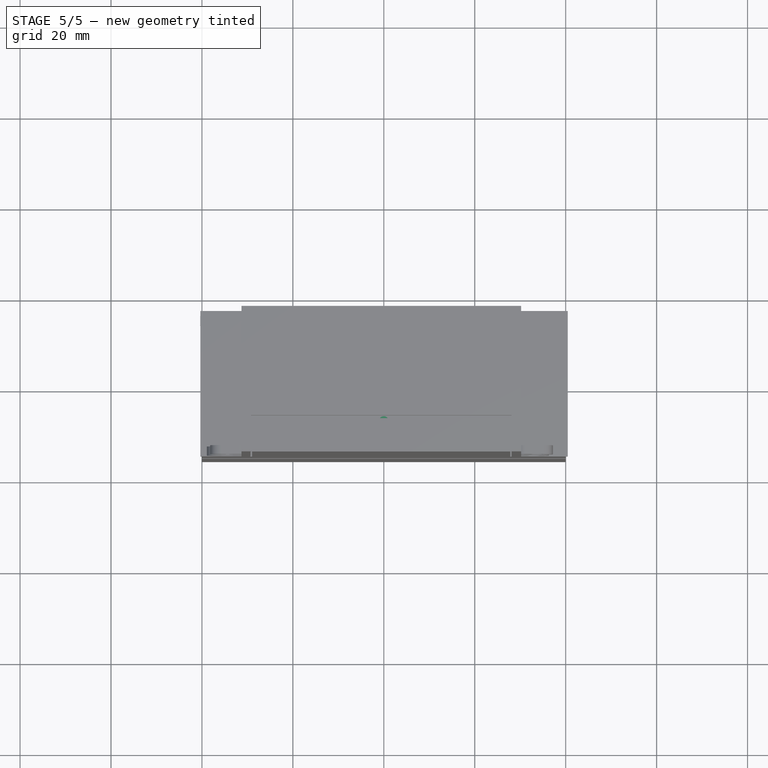
[diagram: stage 5 of 5 — top view after this stage's code; geometry added in this stage tinted green]
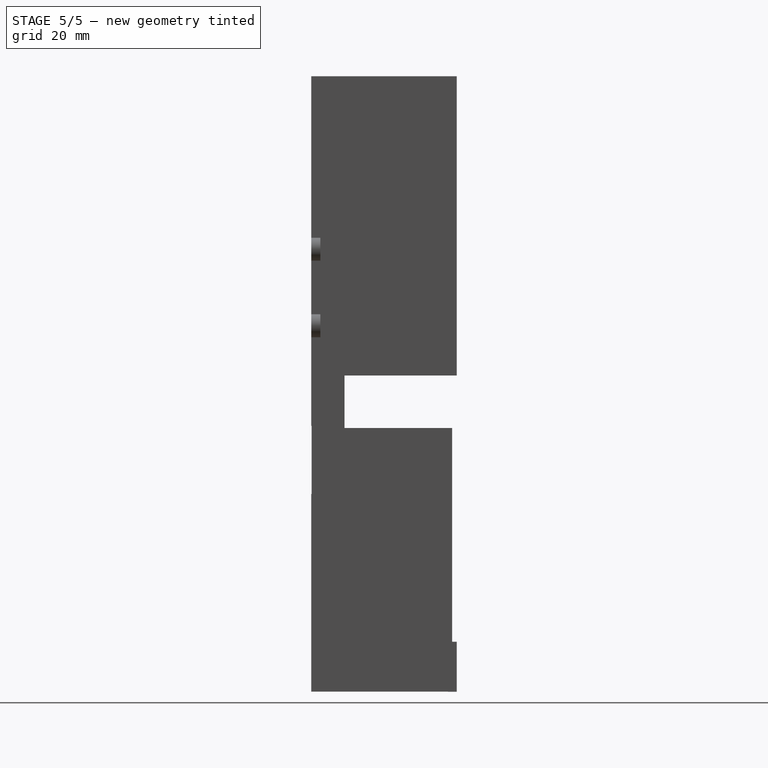
[diagram: stage 5 of 5 — right view after this stage's code; geometry added in this stage tinted green]
FEATURE [Part::Extrusion] Extrude003  label="Extrude004"
  Base = -> Sketch002
  Dir = (0,0,1)
  DirMode = 2
  FaceMakerClass = Part::FaceMakerBullseye
  LengthFwd = 58
  LengthRev = 0
  Solid = true
  Symmetric = false
FEATURE [Sketcher::SketchObject] Sketch005  label="Sketch006"
  Placement = pos=(0,0.01,52) rot=(1,0,0;1.5708rad)
  sketch-geometry (4):
    g0: Circle CenterX=-20.75 CenterY=78 CenterZ=0 NormalX=0 NormalY=0 NormalZ=1 AngleXU=0 Radius=3
    g1: Circle CenterX=20.75 CenterY=78 CenterZ=0 NormalX=0 NormalY=0 NormalZ=1 AngleXU=0 Radius=3
    g2: Circle CenterX=-20.75 CenterY=12 CenterZ=0 NormalX=0 NormalY=0 NormalZ=1 AngleXU=0 Radius=3
    g3: Circle CenterX=20.75 CenterY=12 CenterZ=0 NormalX=0 NormalY=0 NormalZ=1 AngleXU=0 Radius=3
  constraints (12):
    c: Radius(g0) = 3
    c: Equal(g0,g1) = 6
    c: Equal(g0,g2) = 6
    c: DistanceX(g0,g-1) = 20.75
    c: DistanceX(g-1,g1) = 20.75
    c: DistanceX(g2,g-1) = 20.75
    c: DistanceX(g-1,g3) = 20.75
    c: DistanceY(g2,g0) = 66
    c: DistanceY(g3,g1) = 66
    c: Radius(g3) = 3
    c: DistanceY(g-1,g2) = 12
    c: DistanceY(g-1,g3) = 12
FEATURE [Sketcher::SketchObject] Sketch007  label="Sketch008"
  Placement = pos=(0,0.01,0) rot=(1,0,0;1.5708rad)
  sketch-geometry (4):
    g0: Circle CenterX=-20.75 CenterY=129.764 CenterZ=0 NormalX=0 NormalY=0 NormalZ=1 AngleXU=0 Radius=0.8
    g1: Circle CenterX=20.75 CenterY=129.795 CenterZ=0 NormalX=0 NormalY=0 NormalZ=1 AngleXU=0 Radius=0.8
    g2: Circle CenterX=-20.75 CenterY=63.7643 CenterZ=0 NormalX=0 NormalY=0 NormalZ=1 AngleXU=0 Radius=0.8
    g3: Circle CenterX=20.75 CenterY=63.7952 CenterZ=0 NormalX=0 NormalY=0 NormalZ=1 AngleXU=0 Radius=0.8
  constraints (10):
    c: Radius(g0) = 0.8
    c: DistanceX(g0,g-1) = 20.75
    c: Equal(g0,g1) = 0.8
    c: Equal(g0,g2) = 0.8
    c: Equal(g0,g3) = 0.8
    c: DistanceX(g-1,g1) = 20.75
    c: DistanceX(g2,g-1) = 20.75
    c: DistanceX(g-1,g3) = 20.75
    c: DistanceY(g2,g0) = 66
    c: DistanceY(g3,g1) = 66
FEATURE [Part::Extrusion] Extrude005  label="Extrude006"
  Base = -> Sketch005
  Dir = (0,-1,-2e-16)
  DirMode = 2
  FaceMakerClass = Part::FaceMakerBullseye
  LengthFwd = 7
  LengthRev = 0
  Solid = true
  Symmetric = false
FEATURE [Part::Cut] Cut003
  Base = -> Extrude005
  Placement = pos=(0,-8.5,0) rot=(0,0,1;0rad)
  Tool = -> Extrude006
FEATURE [Sketcher::SketchObject] Sketch010  label="Sketch011"
  Placement = pos=(0,-7,77) rot=(0,0,1;0rad)
  sketch-geometry (8):
    g0: ArcOfCircle CenterX=0.051293 CenterY=25.0575 CenterZ=0 NormalX=0 NormalY=0 NormalZ=1 AngleXU=0 Radius=7 StartAngle=1e-16 EndAngle=3.14159
    g1: ArcOfCircle CenterX=0.051293 CenterY=13.8 CenterZ=0 NormalX=0 NormalY=0 NormalZ=1 AngleXU=0 Radius=7 StartAngle=3.14159 EndAngle=6.28319
    g2: LineSegment StartX=-6.94871 StartY=25.0575 StartZ=0 EndX=-6.94871 EndY=13.8 EndZ=0
    g3: LineSegment StartX=7.05129 StartY=25.0575 StartZ=0 EndX=7.05129 EndY=13.8 EndZ=0
    g4: LineSegment StartX=-45.5403 StartY=-8.40448 StartZ=0 EndX=47.5375 EndY=-8.40448 EndZ=0
    g5: LineSegment StartX=47.5375 StartY=-8.40448 StartZ=0 EndX=47.5375 EndY=-17.7635 EndZ=0
    g6: LineSegment StartX=47.5375 StartY=-17.7635 StartZ=0 EndX=-45.5403 EndY=-17.7635 EndZ=0
    g7: LineSegment StartX=-45.5403 StartY=-17.7635 StartZ=0 EndX=-45.5403 EndY=-8.40448 EndZ=0
  constraints (16):
    c: Tangent(g0,g3) = 1.5708
    c: Tangent(g0,g2) = -1.5708
    c: Tangent(g2,g1) = -1.5708
    c: Tangent(g3,g1) = 1.5708
    c: Vertical(g2)
    c: Equal(g0,g1)
    c: Coincident(g4,g5)
    c: Coincident(g5,g6)
    c: Coincident(g6,g7)
    c: Coincident(g7,g4)
    c: Horizontal(g4)
    c: Horizontal(g6)
    c: Vertical(g5)
    c: Vertical(g7)
    c: Radius(g0) = 7
    c: DistanceY(g-1,g1) = 13.8
FEATURE [Sketcher::SketchObject] Sketch011  label="Sketch012"
  Placement = pos=(0,-7,0) rot=(0,0,1;0rad)
  sketch-geometry (4):
    g0: ArcOfCircle CenterX=0 CenterY=25.06 CenterZ=0 NormalX=0 NormalY=0 NormalZ=1 AngleXU=0 Radius=7 StartAngle=0 EndAngle=3.14159
    g1: ArcOfCircle CenterX=-3e-16 CenterY=13.8 CenterZ=0 NormalX=0 NormalY=0 NormalZ=1 AngleXU=0 Radius=7 StartAngle=3.14159 EndAngle=6.28319
    g2: LineSegment StartX=-7 StartY=25.06 StartZ=0 EndX=-7 EndY=13.8 EndZ=0
    g3: LineSegment StartX=7 StartY=25.06 StartZ=0 EndX=7 EndY=13.8 EndZ=0
  constraints (10):
    c: Tangent(g0,g3) = 1.5708
    c: Tangent(g0,g2) = -1.5708
    c: Tangent(g2,g1) = -1.5708
    c: Tangent(g3,g1) = 1.5708
    c: Vertical(g2)
    c: Equal(g0,g1)
    c: Radius(g0) = 7
    c: DistanceY(g-1,g1) = 13.8
    c: DistanceY(g2,g2) = 11.26
    c: DistanceX(g-1,g0) = 0
FEATURE [Part::Extrusion] Extrude009  label="Extrude010"
  Base = -> Sketch010
  Dir = (0,0,1)
  DirMode = 2
  FaceMakerClass = Part::FaceMakerBullseye
  LengthFwd = 15
  LengthRev = 0
  Placement = pos=(0,0,-33.5) rot=(0,0,1;0rad)
  Solid = true
  Symmetric = false
FEATURE [Sketcher::SketchObject] Sketch012  label="Sketch013"
  Placement = pos=(0,0,0.01) rot=(0,0,1;0rad)
  sketch-geometry (4):
    g0: ArcOfCircle CenterX=3.161e-13 CenterY=7.29526 CenterZ=0 NormalX=0 NormalY=0 NormalZ=1 AngleXU=0 Radius=9 StartAngle=3.14159 EndAngle=6.28319
    g1: ArcOfCircle CenterX=0 CenterY=18.5553 CenterZ=0 NormalX=0 NormalY=0 NormalZ=1 AngleXU=0 Radius=9 StartAngle=0 EndAngle=3.14159
    g2: LineSegment StartX=9 StartY=7.29526 StartZ=0 EndX=9 EndY=18.5553 EndZ=0
    g3: LineSegment StartX=-9 StartY=7.29526 StartZ=0 EndX=-9 EndY=18.5553 EndZ=0
  constraints (9):
    c: Tangent(g0,g3) = 1.5708
    c: Tangent(g0,g2) = -1.5708
    c: Tangent(g2,g1) = -1.5708
    c: Tangent(g3,g1) = 1.5708
    c: Vertical(g2)
    c: Equal(g0,g1)
    c: Radius(g0) = 9
    c: DistanceY(g3,g3) = 11.26
    c: DistanceX(g1,g-1) = 0
FEATURE [Part::MultiFuse] Fusion
  Shapes = -> [Extrude003,Cut003,Cut005]
FEATURE [Part::Cut] Cut006
  Base = -> Fusion
  Tool = -> Extrude009
FEATURE [Part::MultiFuse] Fusion001
  Shapes = -> [Cut008,Cut006]
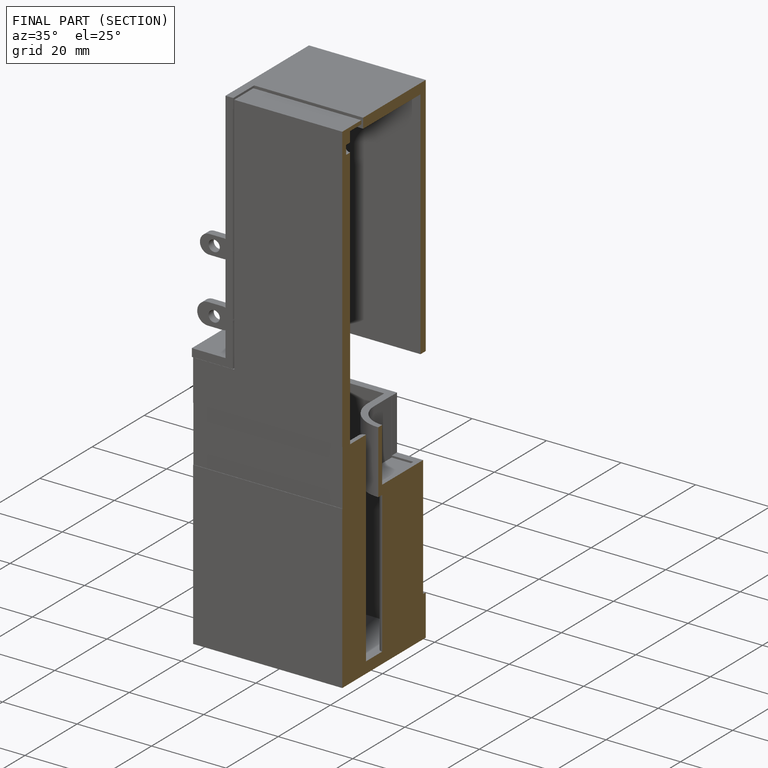
[diagram: finished part — half-section view (interior)]
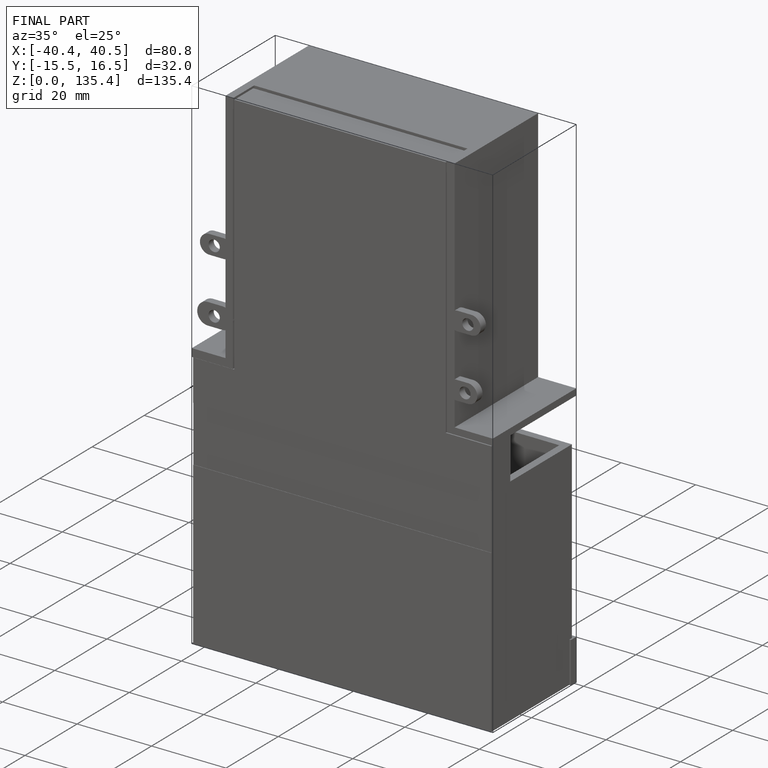
[diagram: finished part — iso view with bounding-box wireframe]
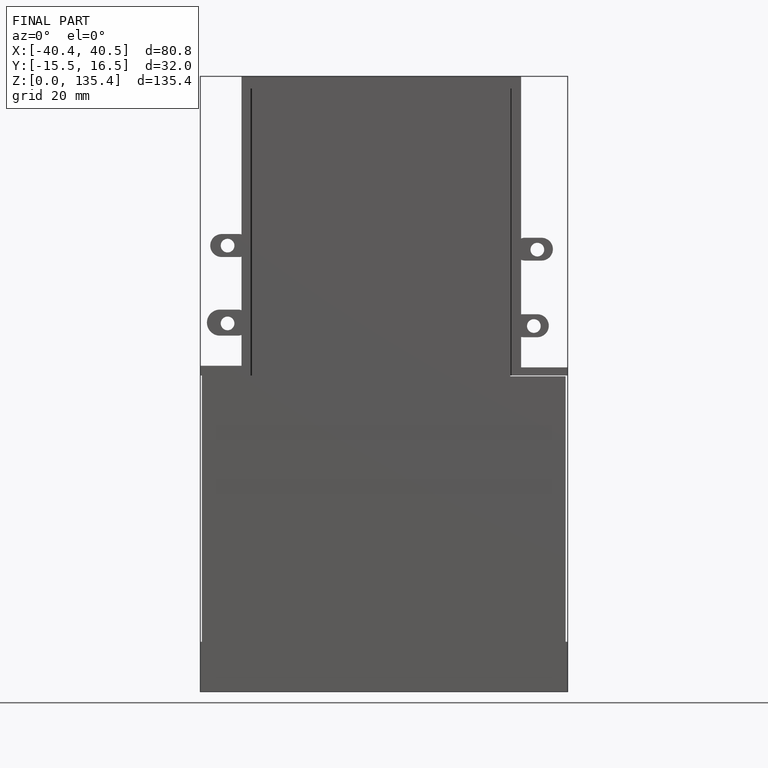
[diagram: finished part — front view with bounding-box wireframe]
